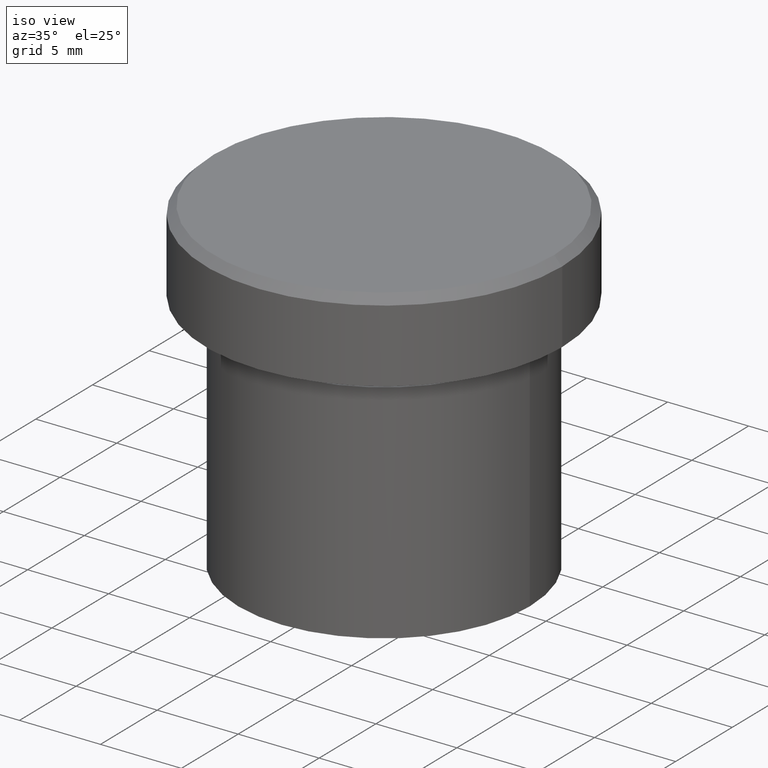
[diagram: clean part render]
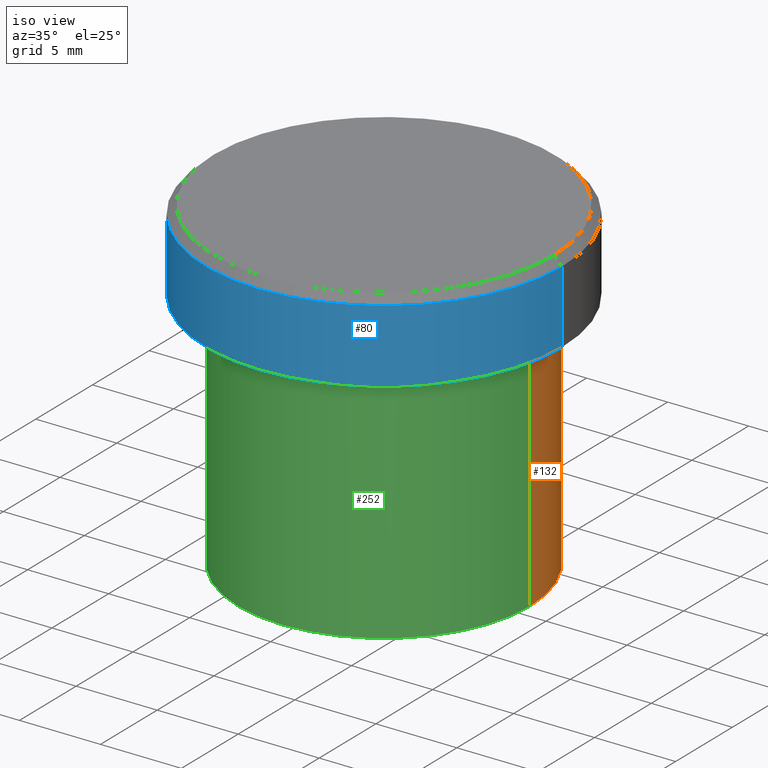
[diagram: same view with three faces highlighted in distinct colors, each labeled with its STEP entity id]
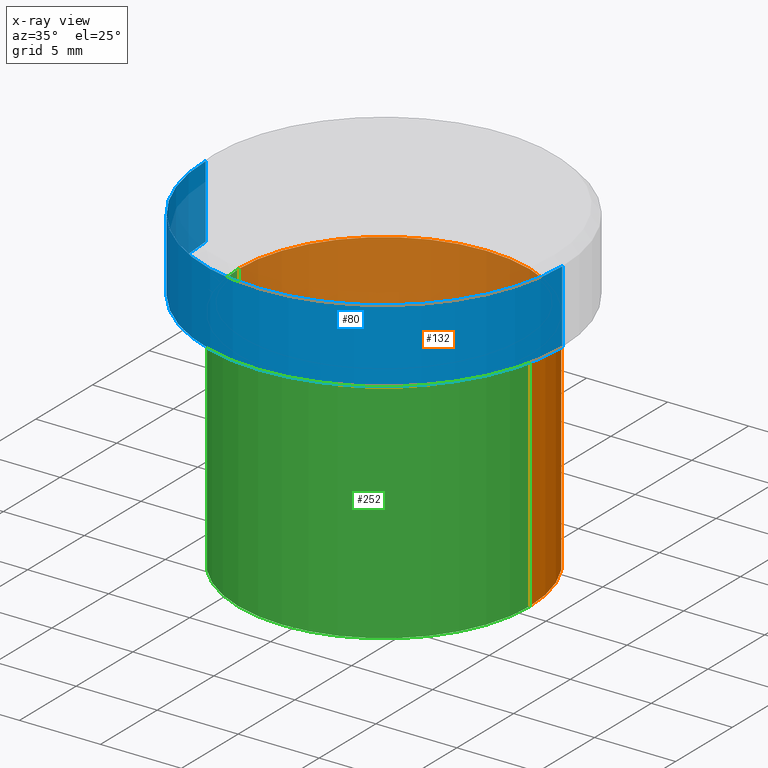
[diagram: x-ray of the same camera — body ghosted, the three highlighted faces saturated]
A machine part, iso view with three faces highlighted in distinct colors.
The next image is the same camera in x-ray (body ghosted, the three faces saturated) — at least one of them is partly hidden behind the body in this view.
Their STEP definitions:

[orange] entity #132 — the highlighted cylindrical surface (partial cylindrical patch) has radius 9 mm, axis along (-0, -0, 1).
#7 = EDGE_CURVE ( 'NONE', #271, #386, #212, .T. ) ;
#37 = VERTEX_POINT ( 'NONE', #396 ) ;
#38 = DIRECTION ( 'NONE',  ( 1.000000000000000000, 0.000000000000000000, 0.000000000000000000 ) ) ;
#41 = DIRECTION ( 'NONE',  ( 1.000000000000000000, 0.000000000000000000, 0.000000000000000000 ) ) ;
#59 = ORIENTED_EDGE ( 'NONE', *, *, #171, .F. ) ;
#62 = EDGE_CURVE ( 'NONE', #37, #271, #209, .T. ) ;
#63 = DIRECTION ( 'NONE',  ( 1.000000000000000000, 0.000000000000000000, 0.000000000000000000 ) ) ;
#73 = DIRECTION ( 'NONE',  ( -0.000000000000000000, -0.000000000000000000, 1.000000000000000000 ) ) ;
#105 = AXIS2_PLACEMENT_3D ( 'NONE', #241, #204, #38 ) ;
#120 = ORIENTED_EDGE ( 'NONE', *, *, #387, .F. ) ;
#132 = ADVANCED_FACE ( 'NONE', ( #275 ), #306, .T. ) ;
#139 = VECTOR ( 'NONE', #319, 1000.000000000000000 ) ;
#152 = CARTESIAN_POINT ( 'NONE',  ( 0.000000000000000000, 0.000000000000000000, -6.000000000000000000 ) ) ;
#155 = VERTEX_POINT ( 'NONE', #345 ) ;
#171 = EDGE_CURVE ( 'NONE', #155, #386, #243, .T. ) ;
#188 = DIRECTION ( 'NONE',  ( -0.000000000000000000, -0.000000000000000000, 1.000000000000000000 ) ) ;
#204 = DIRECTION ( 'NONE',  ( -0.000000000000000000, -0.000000000000000000, 1.000000000000000000 ) ) ;
#209 = CIRCLE ( 'NONE', #366, 9.000000000000000000 ) ;
#212 = LINE ( 'NONE', #326, #139 ) ;
#214 = AXIS2_PLACEMENT_3D ( 'NONE', #152, #351, #63 ) ;
#216 = CARTESIAN_POINT ( 'NONE',  ( 0.000000000000000000, 0.000000000000000000, -20.00000000000000000 ) ) ;
#232 = CARTESIAN_POINT ( 'NONE',  ( -9.000000000000000000, 1.102182119232617714E-15, -6.000000000000000000 ) ) ;
#241 = CARTESIAN_POINT ( 'NONE',  ( 0.000000000000000000, 0.000000000000000000, 0.000000000000000000 ) ) ;
#243 = CIRCLE ( 'NONE', #214, 9.000000000000000000 ) ;
#246 = CARTESIAN_POINT ( 'NONE',  ( -9.000000000000000000, 1.102182119232617714E-15, -20.00000000000000000 ) ) ;
#260 = EDGE_LOOP ( 'NONE', ( #301, #265, #59, #120 ) ) ;
#265 = ORIENTED_EDGE ( 'NONE', *, *, #7, .T. ) ;
#271 = VERTEX_POINT ( 'NONE', #246 ) ;
#275 = FACE_OUTER_BOUND ( 'NONE', #260, .T. ) ;
#301 = ORIENTED_EDGE ( 'NONE', *, *, #62, .T. ) ;
#306 = CYLINDRICAL_SURFACE ( 'NONE', #105, 9.000000000000000000 ) ;
#319 = DIRECTION ( 'NONE',  ( -0.000000000000000000, -0.000000000000000000, 1.000000000000000000 ) ) ;
#326 = CARTESIAN_POINT ( 'NONE',  ( -9.000000000000000000, 1.102182119232617714E-15, 0.000000000000000000 ) ) ;
#345 = CARTESIAN_POINT ( 'NONE',  ( 9.000000000000000000, 0.000000000000000000, -6.000000000000000000 ) ) ;
#351 = DIRECTION ( 'NONE',  ( -0.000000000000000000, -0.000000000000000000, 1.000000000000000000 ) ) ;
#363 = CARTESIAN_POINT ( 'NONE',  ( 9.000000000000000000, 0.000000000000000000, 0.000000000000000000 ) ) ;
#366 = AXIS2_PLACEMENT_3D ( 'NONE', #216, #188, #41 ) ;
#386 = VERTEX_POINT ( 'NONE', #232 ) ;
#387 = EDGE_CURVE ( 'NONE', #37, #155, #395, .T. ) ;
#393 = VECTOR ( 'NONE', #73, 1000.000000000000000 ) ;
#395 = LINE ( 'NONE', #363, #393 ) ;
#396 = CARTESIAN_POINT ( 'NONE',  ( 9.000000000000000000, 0.000000000000000000, -20.00000000000000000 ) ) ;

[blue] entity #80 — the highlighted cylindrical surface (partial cylindrical patch) has radius 11 mm, axis along (-0, -0, 1).
#5 = EDGE_LOOP ( 'NONE', ( #206, #109, #58, #276 ) ) ;
#21 = VERTEX_POINT ( 'NONE', #186 ) ;
#36 = LINE ( 'NONE', #121, #290 ) ;
#46 = CARTESIAN_POINT ( 'NONE',  ( 11.00000000000000000, 0.000000000000000000, 0.000000000000000000 ) ) ;
#54 = AXIS2_PLACEMENT_3D ( 'NONE', #96, #356, #392 ) ;
#58 = ORIENTED_EDGE ( 'NONE', *, *, #257, .T. ) ;
#61 = CARTESIAN_POINT ( 'NONE',  ( 0.000000000000000000, 0.000000000000000000, -0.5000000000000004441 ) ) ;
#65 = CIRCLE ( 'NONE', #380, 11.00000000000000000 ) ;
#80 = ADVANCED_FACE ( 'NONE', ( #160 ), #388, .T. ) ;
#96 = CARTESIAN_POINT ( 'NONE',  ( 0.000000000000000000, 0.000000000000000000, 0.000000000000000000 ) ) ;
#109 = ORIENTED_EDGE ( 'NONE', *, *, #342, .T. ) ;
#121 = CARTESIAN_POINT ( 'NONE',  ( -11.00000000000000000, 1.347111479062088405E-15, 0.000000000000000000 ) ) ;
#122 = DIRECTION ( 'NONE',  ( 0.000000000000000000, 0.000000000000000000, -1.000000000000000000 ) ) ;
#128 = CARTESIAN_POINT ( 'NONE',  ( 11.00000000000000000, 0.000000000000000000, -5.000000000000000000 ) ) ;
#150 = EDGE_CURVE ( 'NONE', #21, #334, #36, .T. ) ;
#157 = VECTOR ( 'NONE', #279, 1000.000000000000000 ) ;
#160 = FACE_OUTER_BOUND ( 'NONE', #5, .T. ) ;
#164 = EDGE_CURVE ( 'NONE', #346, #334, #65, .T. ) ;
#168 = AXIS2_PLACEMENT_3D ( 'NONE', #296, #402, #335 ) ;
#173 = CARTESIAN_POINT ( 'NONE',  ( -11.00000000000000000, 1.347111479062088405E-15, -0.5000000000000004441 ) ) ;
#186 = CARTESIAN_POINT ( 'NONE',  ( -11.00000000000000000, 1.347111479062088405E-15, -5.000000000000000000 ) ) ;
#206 = ORIENTED_EDGE ( 'NONE', *, *, #150, .F. ) ;
#210 = DIRECTION ( 'NONE',  ( -0.000000000000000000, -0.000000000000000000, 1.000000000000000000 ) ) ;
#257 = EDGE_CURVE ( 'NONE', #269, #346, #325, .T. ) ;
#269 = VERTEX_POINT ( 'NONE', #128 ) ;
#276 = ORIENTED_EDGE ( 'NONE', *, *, #164, .T. ) ;
#279 = DIRECTION ( 'NONE',  ( -0.000000000000000000, -0.000000000000000000, 1.000000000000000000 ) ) ;
#286 = CARTESIAN_POINT ( 'NONE',  ( 11.00000000000000000, 0.000000000000000000, -0.5000000000000004441 ) ) ;
#290 = VECTOR ( 'NONE', #210, 1000.000000000000000 ) ;
#296 = CARTESIAN_POINT ( 'NONE',  ( 0.000000000000000000, 0.000000000000000000, -5.000000000000000000 ) ) ;
#313 = DIRECTION ( 'NONE',  ( 1.000000000000000000, 0.000000000000000000, 0.000000000000000000 ) ) ;
#325 = LINE ( 'NONE', #46, #157 ) ;
#334 = VERTEX_POINT ( 'NONE', #173 ) ;
#335 = DIRECTION ( 'NONE',  ( 1.000000000000000000, 0.000000000000000000, 0.000000000000000000 ) ) ;
#342 = EDGE_CURVE ( 'NONE', #21, #269, #354, .T. ) ;
#346 = VERTEX_POINT ( 'NONE', #286 ) ;
#354 = CIRCLE ( 'NONE', #168, 11.00000000000000000 ) ;
#356 = DIRECTION ( 'NONE',  ( -0.000000000000000000, -0.000000000000000000, 1.000000000000000000 ) ) ;
#380 = AXIS2_PLACEMENT_3D ( 'NONE', #61, #122, #313 ) ;
#388 = CYLINDRICAL_SURFACE ( 'NONE', #54, 11.00000000000000000 ) ;
#392 = DIRECTION ( 'NONE',  ( 1.000000000000000000, 0.000000000000000000, 0.000000000000000000 ) ) ;
#402 = DIRECTION ( 'NONE',  ( -0.000000000000000000, -0.000000000000000000, 1.000000000000000000 ) ) ;

[green] entity #252 — the highlighted cylindrical surface (partial cylindrical patch) has radius 9 mm, axis along (-0, -0, 1).
#7 = EDGE_CURVE ( 'NONE', #271, #386, #212, .T. ) ;
#23 = DIRECTION ( 'NONE',  ( -0.000000000000000000, -0.000000000000000000, 1.000000000000000000 ) ) ;
#30 = ORIENTED_EDGE ( 'NONE', *, *, #7, .F. ) ;
#32 = CIRCLE ( 'NONE', #76, 9.000000000000000000 ) ;
#37 = VERTEX_POINT ( 'NONE', #396 ) ;
#42 = CYLINDRICAL_SURFACE ( 'NONE', #339, 9.000000000000000000 ) ;
#73 = DIRECTION ( 'NONE',  ( -0.000000000000000000, -0.000000000000000000, 1.000000000000000000 ) ) ;
#76 = AXIS2_PLACEMENT_3D ( 'NONE', #299, #23, #146 ) ;
#139 = VECTOR ( 'NONE', #319, 1000.000000000000000 ) ;
#146 = DIRECTION ( 'NONE',  ( 1.000000000000000000, 0.000000000000000000, 0.000000000000000000 ) ) ;
#155 = VERTEX_POINT ( 'NONE', #345 ) ;
#158 = CARTESIAN_POINT ( 'NONE',  ( 0.000000000000000000, 0.000000000000000000, -20.00000000000000000 ) ) ;
#183 = ORIENTED_EDGE ( 'NONE', *, *, #374, .F. ) ;
#208 = EDGE_CURVE ( 'NONE', #271, #37, #250, .T. ) ;
#212 = LINE ( 'NONE', #326, #139 ) ;
#220 = DIRECTION ( 'NONE',  ( -0.000000000000000000, -0.000000000000000000, 1.000000000000000000 ) ) ;
#232 = CARTESIAN_POINT ( 'NONE',  ( -9.000000000000000000, 1.102182119232617714E-15, -6.000000000000000000 ) ) ;
#242 = EDGE_LOOP ( 'NONE', ( #30, #277, #244, #183 ) ) ;
#244 = ORIENTED_EDGE ( 'NONE', *, *, #387, .T. ) ;
#246 = CARTESIAN_POINT ( 'NONE',  ( -9.000000000000000000, 1.102182119232617714E-15, -20.00000000000000000 ) ) ;
#250 = CIRCLE ( 'NONE', #389, 9.000000000000000000 ) ;
#252 = ADVANCED_FACE ( 'NONE', ( #318 ), #42, .T. ) ;
#271 = VERTEX_POINT ( 'NONE', #246 ) ;
#277 = ORIENTED_EDGE ( 'NONE', *, *, #208, .T. ) ;
#299 = CARTESIAN_POINT ( 'NONE',  ( 0.000000000000000000, 0.000000000000000000, -6.000000000000000000 ) ) ;
#318 = FACE_OUTER_BOUND ( 'NONE', #242, .T. ) ;
#319 = DIRECTION ( 'NONE',  ( -0.000000000000000000, -0.000000000000000000, 1.000000000000000000 ) ) ;
#326 = CARTESIAN_POINT ( 'NONE',  ( -9.000000000000000000, 1.102182119232617714E-15, 0.000000000000000000 ) ) ;
#339 = AXIS2_PLACEMENT_3D ( 'NONE', #390, #220, #361 ) ;
#345 = CARTESIAN_POINT ( 'NONE',  ( 9.000000000000000000, 0.000000000000000000, -6.000000000000000000 ) ) ;
#361 = DIRECTION ( 'NONE',  ( 1.000000000000000000, 0.000000000000000000, 0.000000000000000000 ) ) ;
#363 = CARTESIAN_POINT ( 'NONE',  ( 9.000000000000000000, 0.000000000000000000, 0.000000000000000000 ) ) ;
#374 = EDGE_CURVE ( 'NONE', #386, #155, #32, .T. ) ;
#377 = DIRECTION ( 'NONE',  ( -0.000000000000000000, -0.000000000000000000, 1.000000000000000000 ) ) ;
#386 = VERTEX_POINT ( 'NONE', #232 ) ;
#387 = EDGE_CURVE ( 'NONE', #37, #155, #395, .T. ) ;
#389 = AXIS2_PLACEMENT_3D ( 'NONE', #158, #377, #407 ) ;
#390 = CARTESIAN_POINT ( 'NONE',  ( 0.000000000000000000, 0.000000000000000000, 0.000000000000000000 ) ) ;
#393 = VECTOR ( 'NONE', #73, 1000.000000000000000 ) ;
#395 = LINE ( 'NONE', #363, #393 ) ;
#396 = CARTESIAN_POINT ( 'NONE',  ( 9.000000000000000000, 0.000000000000000000, -20.00000000000000000 ) ) ;
#407 = DIRECTION ( 'NONE',  ( 1.000000000000000000, 0.000000000000000000, 0.000000000000000000 ) ) ;